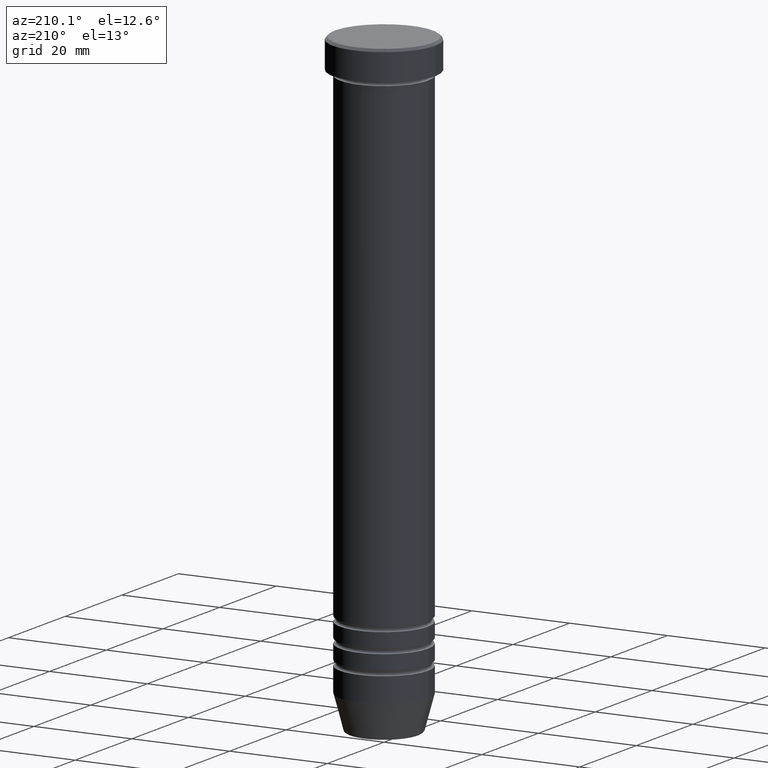
[diagram: clean part render]
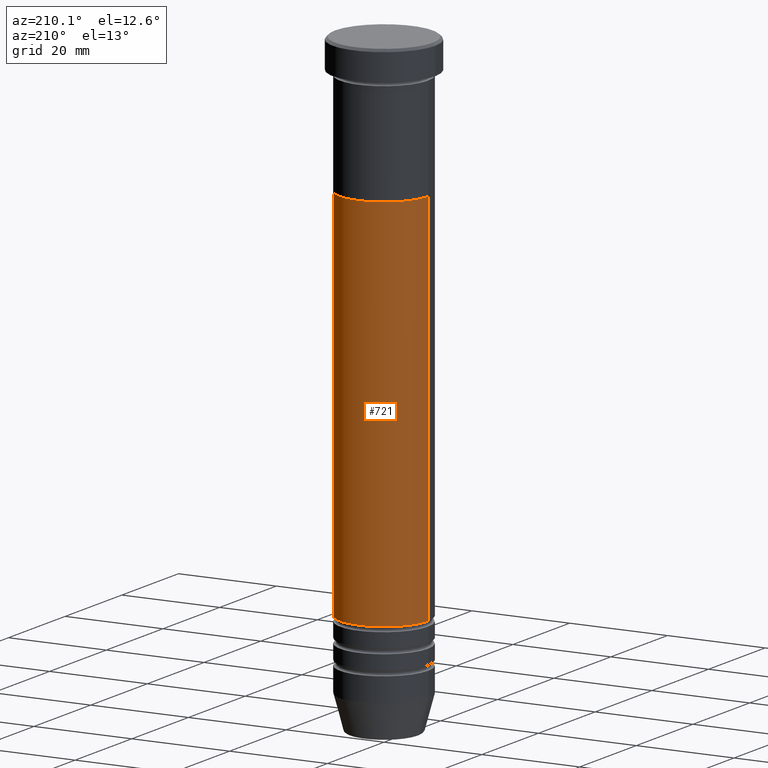
[diagram: same view with one face highlighted and labeled with its STEP entity id]
A machine part, auxiliary view. The second image highlights one B-rep face of the part: STEP entity #721.
In plain terms, the highlighted cylindrical surface (partial cylindrical patch) has radius 9 mm, axis along (-0, -0, 1).
Its self-contained STEP definition (entity closure, byte-faithful):
#64 = CARTESIAN_POINT ( 'NONE',  ( -8.999999999999992895, 1.102182119232617122E-15, -105.0000000000000142 ) ) ;
#87 = CARTESIAN_POINT ( 'NONE',  ( 0.000000000000000000, 0.000000000000000000, -28.00000000000000000 ) ) ;
#100 = AXIS2_PLACEMENT_3D ( 'NONE', #87, #277, #627 ) ;
#116 = VERTEX_POINT ( 'NONE', #64 ) ;
#142 = DIRECTION ( 'NONE',  ( -0.000000000000000000, -0.000000000000000000, 1.000000000000000000 ) ) ;
#158 = DIRECTION ( 'NONE',  ( -0.000000000000000000, -0.000000000000000000, 1.000000000000000000 ) ) ;
#163 = EDGE_CURVE ( 'NONE', #863, #116, #656, .T. ) ;
#164 = ORIENTED_EDGE ( 'NONE', *, *, #778, .F. ) ;
#204 = LINE ( 'NONE', #1101, #1059 ) ;
#229 = EDGE_LOOP ( 'NONE', ( #460, #634, #319, #164 ) ) ;
#270 = LINE ( 'NONE', #430, #997 ) ;
#277 = DIRECTION ( 'NONE',  ( -0.000000000000000000, -0.000000000000000000, 1.000000000000000000 ) ) ;
#279 = CARTESIAN_POINT ( 'NONE',  ( -9.000000000000000000, 1.102182119232617911E-15, -28.00000000000000000 ) ) ;
#285 = VERTEX_POINT ( 'NONE', #279 ) ;
#319 = ORIENTED_EDGE ( 'NONE', *, *, #470, .F. ) ;
#321 = CYLINDRICAL_SURFACE ( 'NONE', #528, 8.999999999999996447 ) ;
#430 = CARTESIAN_POINT ( 'NONE',  ( 8.999999999999996447, 0.000000000000000000, 0.000000000000000000 ) ) ;
#460 = ORIENTED_EDGE ( 'NONE', *, *, #163, .T. ) ;
#470 = EDGE_CURVE ( 'NONE', #811, #285, #872, .T. ) ;
#481 = CARTESIAN_POINT ( 'NONE',  ( 0.000000000000000000, 0.000000000000000000, -105.0000000000000142 ) ) ;
#528 = AXIS2_PLACEMENT_3D ( 'NONE', #1141, #158, #954 ) ;
#546 = DIRECTION ( 'NONE',  ( -0.000000000000000000, -0.000000000000000000, 1.000000000000000000 ) ) ;
#571 = FACE_OUTER_BOUND ( 'NONE', #229, .T. ) ;
#627 = DIRECTION ( 'NONE',  ( 1.000000000000000000, 0.000000000000000000, 0.000000000000000000 ) ) ;
#634 = ORIENTED_EDGE ( 'NONE', *, *, #786, .T. ) ;
#656 = CIRCLE ( 'NONE', #901, 8.999999999999992895 ) ;
#721 = ADVANCED_FACE ( 'NONE', ( #571 ), #321, .T. ) ;
#778 = EDGE_CURVE ( 'NONE', #863, #811, #270, .T. ) ;
#786 = EDGE_CURVE ( 'NONE', #116, #285, #204, .T. ) ;
#811 = VERTEX_POINT ( 'NONE', #1004 ) ;
#853 = CARTESIAN_POINT ( 'NONE',  ( 8.999999999999992895, 0.000000000000000000, -105.0000000000000142 ) ) ;
#863 = VERTEX_POINT ( 'NONE', #853 ) ;
#872 = CIRCLE ( 'NONE', #100, 9.000000000000000000 ) ;
#901 = AXIS2_PLACEMENT_3D ( 'NONE', #481, #142, #1122 ) ;
#954 = DIRECTION ( 'NONE',  ( 1.000000000000000000, 0.000000000000000000, 0.000000000000000000 ) ) ;
#993 = DIRECTION ( 'NONE',  ( -0.000000000000000000, -0.000000000000000000, 1.000000000000000000 ) ) ;
#997 = VECTOR ( 'NONE', #993, 1000.000000000000000 ) ;
#1004 = CARTESIAN_POINT ( 'NONE',  ( 9.000000000000000000, 0.000000000000000000, -28.00000000000000000 ) ) ;
#1059 = VECTOR ( 'NONE', #546, 1000.000000000000000 ) ;
#1101 = CARTESIAN_POINT ( 'NONE',  ( -8.999999999999996447, 1.102182119232617319E-15, 0.000000000000000000 ) ) ;
#1122 = DIRECTION ( 'NONE',  ( 1.000000000000000000, 0.000000000000000000, 0.000000000000000000 ) ) ;
#1141 = CARTESIAN_POINT ( 'NONE',  ( 0.000000000000000000, 0.000000000000000000, 0.000000000000000000 ) ) ;